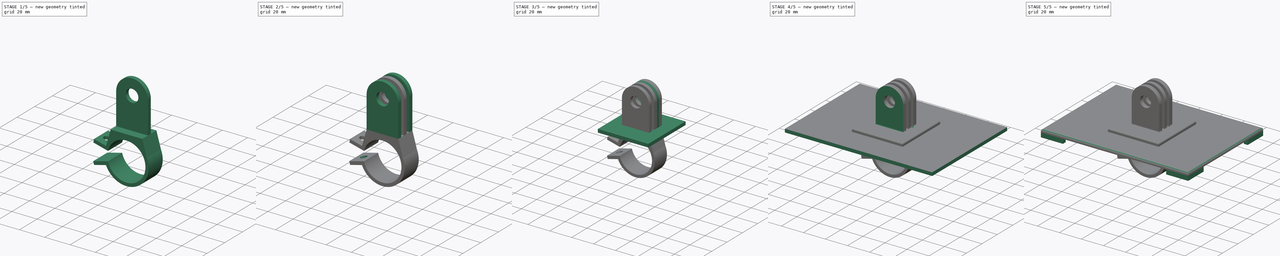
[diagram: build sequence overview — one tinted view per stage of 5, left to right]
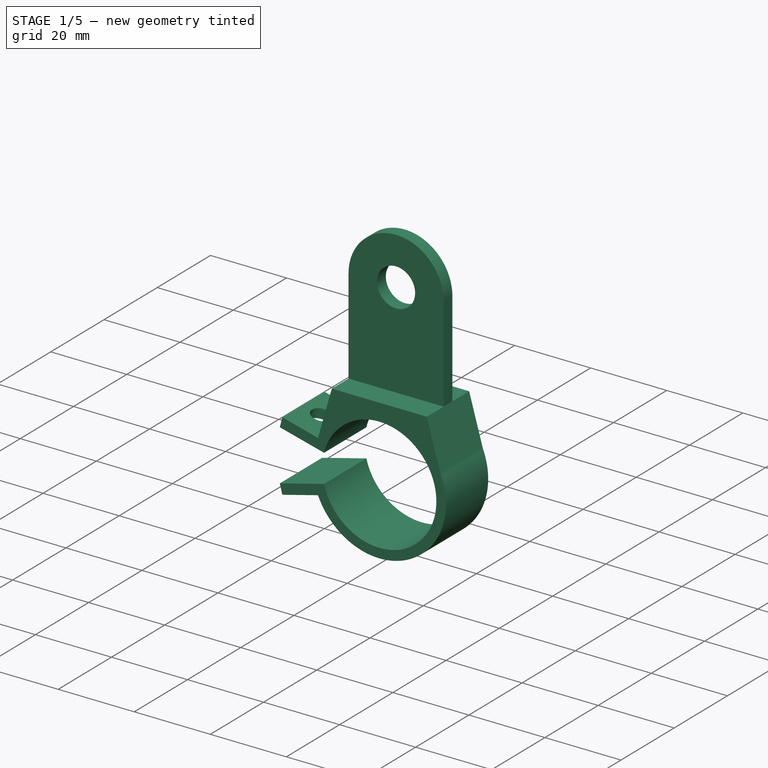
[diagram: stage 1 of 5 — iso view after this stage's code; geometry added in this stage tinted green]
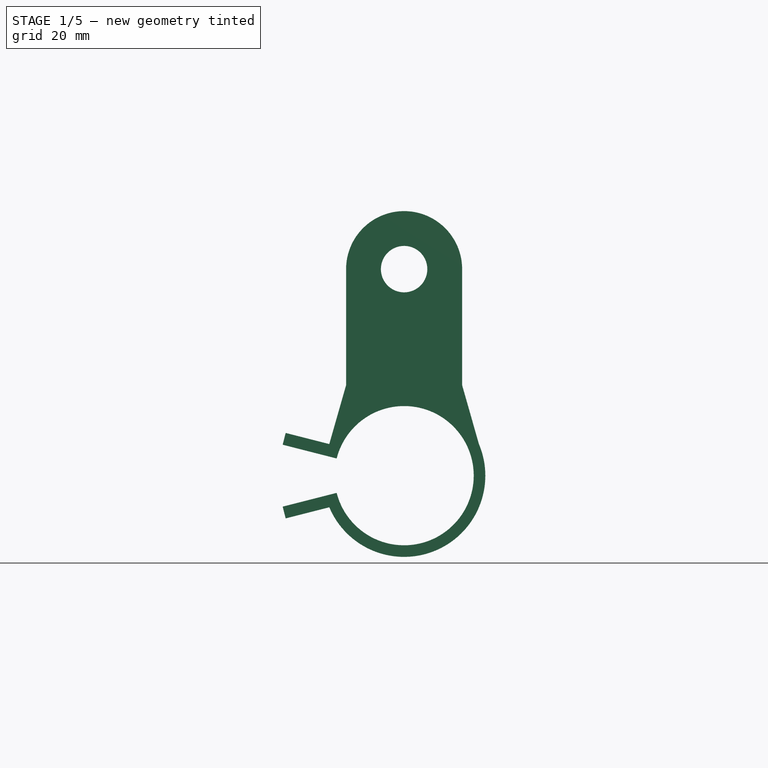
[diagram: stage 1 of 5 — front view after this stage's code; geometry added in this stage tinted green]
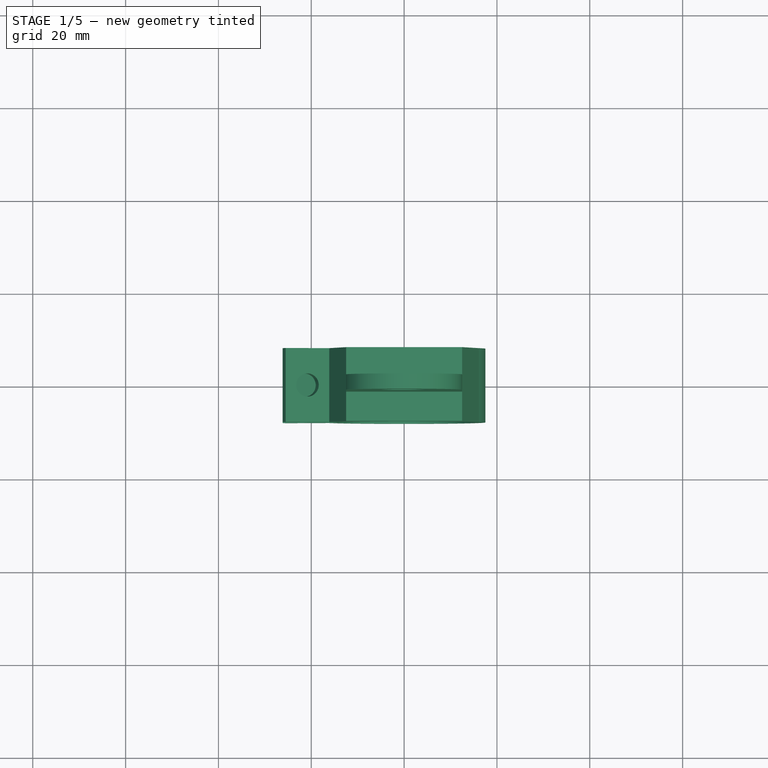
[diagram: stage 1 of 5 — top view after this stage's code; geometry added in this stage tinted green]
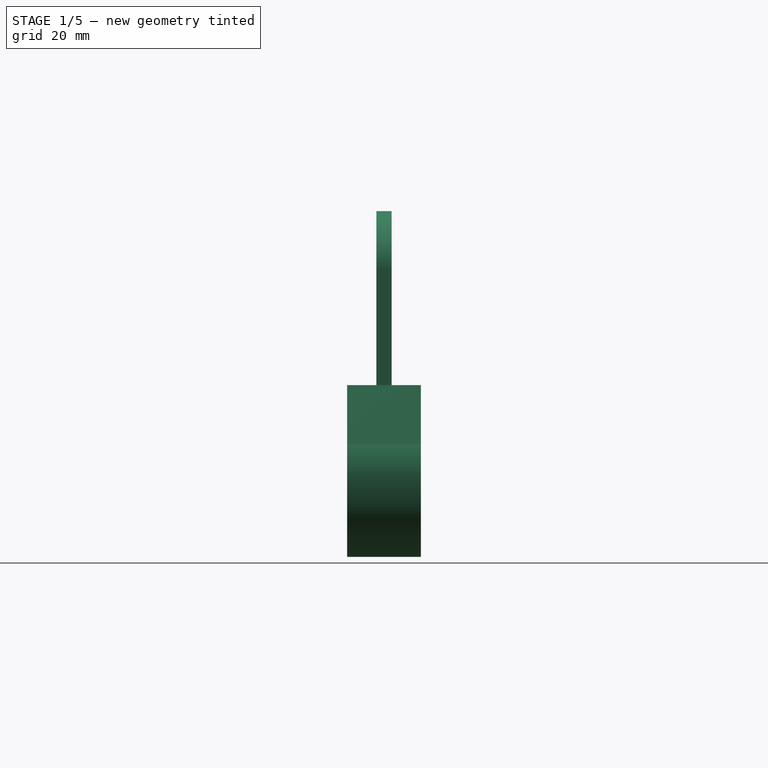
[diagram: stage 1 of 5 — right view after this stage's code; geometry added in this stage tinted green]
FCSTD DOCUMENT  (FreeCAD 0.20R25352 (Git))
Label: gopro mount and misc
License: All rights reserved
LicenseURL: http://en.wikipedia.org/wiki/All_rights_reserved
objects: Sketcher::SketchObject×9, PartDesign::Pad×6, PartDesign::LinearPattern×4, PartDesign::Body×3, PartDesign::Fillet×2, PartDesign::Pocket×2, PartDesign::Mirrored×1, PartDesign::PolarPattern×1, PartDesign::MultiTransform×1
note: 39 computed .brp shape members not serialized (recipe doc carries the construction recipe); baked Part::Feature solids carry a one-line shape summary decoded from their .brp

FEATURE [PartDesign::Body] Body  label="gopro 3"
  Group = -> [Sketch,Sketch001,Pad,Sketch002,Pad001,LinearPattern,LinearPattern001,Fillet]
  Origin = -> Origin
  Tip = -> Fillet
FEATURE [Sketcher::SketchObject] Sketch005
  FullyConstrained = false
  MapMode = 5
  Placement = pos=(0,0,-1.1e-15) rot=(1,0,0;1.5708rad)
  sketch-geometry (5):
    g0: LineSegment StartX=-12.5 StartY=24.7172 StartZ=0 EndX=-12.5 EndY=-0.282837 EndZ=0
    g1: LineSegment StartX=-12.5 StartY=-0.282837 StartZ=0 EndX=12.5 EndY=-0.282837 EndZ=0
    g2: LineSegment StartX=12.5 StartY=-0.282837 StartZ=0 EndX=12.5 EndY=24.7172 EndZ=0
    g3: ArcOfCircle CenterX=0 CenterY=24.7172 CenterZ=0 NormalX=0 NormalY=0 NormalZ=1 AngleXU=0 Radius=12.5 StartAngle=0 EndAngle=3.14159
    g4: Circle CenterX=0 CenterY=24.7172 CenterZ=0 NormalX=0 NormalY=0 NormalZ=1 AngleXU=0 Radius=5
  constraints (14):
    c: Vertical(g0)
    c: Coincident(g0,g1)
    c: Horizontal(g1)
    c: Coincident(g1,g2)
    c: Vertical(g2)
    c: PointOnObject(g3,g-2)
    c: Coincident(g3,g0)
    c: Coincident(g3,g2)
    c: Coincident(g4,g3)
    c: Diameter(g4) = 10
    c: Horizontal(g0,g3)
    c: Horizontal(g2,g3)
    c: DistanceX(g0,g1) = 25
    c: DistanceY(g0,g0) = 25
FEATURE [Sketcher::SketchObject] Sketch007
  ExternalGeometry = -> [Sketch005]
  FullyConstrained = false
  MapMode = 5
  Placement = pos=(0,0,0) rot=(1,0,0;1.5708rad)
  Support = -> [XZ_Plane002]
  sketch-geometry (12):
    g0: ArcOfCircle CenterX=0 CenterY=-19.7824 CenterZ=0 NormalX=0 NormalY=0 NormalZ=1 AngleXU=0 Radius=15 StartAngle=3.39122 EndAngle=9.17515
    g1: LineSegment StartX=-26.1635 StartY=-13.1122 StartZ=0 EndX=-25.5171 EndY=-10.577 EndZ=0
    g2: LineSegment StartX=-25.5171 StartY=-10.577 StartZ=0 EndX=-16.1207 EndY=-12.9726 EndZ=0
    g3: LineSegment StartX=-26.1635 StartY=-26.4526 StartZ=0 EndX=-25.5171 EndY=-28.9878 EndZ=0
    g4: LineSegment StartX=-25.5171 StartY=-28.9878 StartZ=0 EndX=-16.1207 EndY=-26.5923 EndZ=0
    g5: LineSegment StartX=0 StartY=-19.7824 StartZ=0 EndX=-96.3613 EndY=-19.7824 EndZ=0
    g6: LineSegment StartX=-14.5351 StartY=-16.0768 StartZ=0 EndX=-26.1635 EndY=-13.1122 EndZ=0
    g7: LineSegment StartX=-14.5351 StartY=-23.488 StartZ=0 EndX=-26.1635 EndY=-26.4526 EndZ=0
    g8: LineSegment StartX=-16.1207 StartY=-12.9726 StartZ=0 EndX=-12.5 EndY=-0.282837 EndZ=0
    g9: LineSegment StartX=-12.5 StartY=-0.282837 StartZ=0 EndX=12.5 EndY=-0.282837 EndZ=0
    g10: LineSegment StartX=12.5 StartY=-0.282837 StartZ=0 EndX=16.1207 EndY=-12.9726 EndZ=0
    g11: ArcOfCircle CenterX=0 CenterY=-19.7824 CenterZ=0 NormalX=0 NormalY=0 NormalZ=1 AngleXU=0 Radius=17.5 StartAngle=3.54128 EndAngle=6.68288
  constraints (28):
    c: Coincident(g1,g2)
    c: Coincident(g3,g4)
    c: Coincident(g5,g0)
    c: Horizontal(g5)
    c: Coincident(g6,g0)
    c: Coincident(g6,g1)
    c: Coincident(g7,g0)
    c: Coincident(g7,g3)
    c: Diameter(g0) = 30
    c: Perpendicular(g0,g6)
    c: Perpendicular(g1,g6)
    c: Perpendicular(g2,g1)
    c: Perpendicular(g3,g7)
    c: Perpendicular(g4,g3)
    c: PointOnObject(g0,g-2)
    c: Symmetric(g0,g0,g5)
    c: Equal(g3,g1)
    c: Symmetric(g1,g3,g5)
    c: Coincident(g8,g2)
    c: Coincident(g10,g9)
    c: Symmetric(g2,g10,g-2)
    c: Coincident(g11,g0)
    c: Coincident(g11,g4)
    c: Coincident(g11,g10)
    c: Diameter(g11) = 35
    c: Coincident(g8,g9)
    c: Coincident(g8,g-3)
    c: Coincident(g9,g-3)
FEATURE [PartDesign::Pad] Pad006  label="ring"
  Direction = (0,-1,-2e-16)
  Length = 15.9
  Length2 = 1
  Midplane = true
  Placement = pos=(0,0,0) rot=(1,0,0;1.5708rad)
  Profile = -> Sketch007
  Type = 0
FEATURE [PartDesign::Pad] Pad007  label="finger"
  BaseFeature = -> Pad006
  Direction = (0,-1,2e-16)
  Length = 3.3
  Length2 = 100
  Midplane = true
  Placement = pos=(0,0,0) rot=(1,0,0;1.5708rad)
  Profile = -> Sketch005
  Type = 0
FEATURE [Sketcher::SketchObject] Sketch008
  ExternalGeometry = -> [Pad007]
  FullyConstrained = true
  MapMode = 5
  Placement = pos=(-4.08926,3.6e-15,-16.0399) rot=(0.124489,0,0.992221;3.14159rad)
  Support = -> [Pad007]
  sketch-geometry (1):
    g0: Circle CenterX=17.2648 CenterY=7e-16 CenterZ=0 NormalX=0 NormalY=0 NormalZ=1 AngleXU=0 Radius=2.5
  constraints (2):
    c: Symmetric(g-3,g-4,g0)
    c: Diameter(g0) = 5
FEATURE [PartDesign::Pocket] Pocket
  BaseFeature = -> Pad007
  Length = 5
  Length2 = 100
  Placement = pos=(0,0,0) rot=(1,0,0;1.5708rad)
  Profile = -> Sketch008
  Type = 2
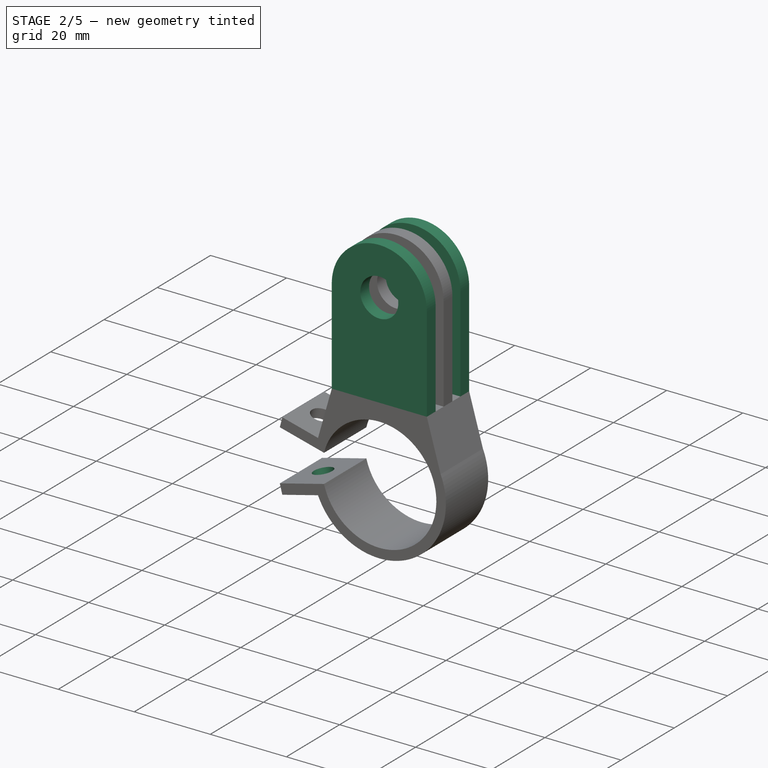
[diagram: stage 2 of 5 — iso view after this stage's code; geometry added in this stage tinted green]
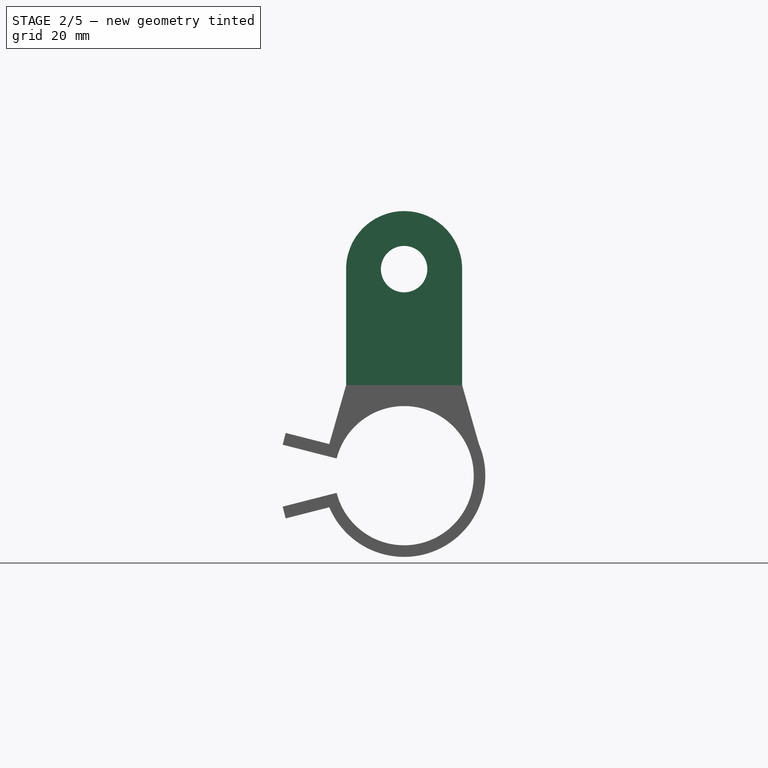
[diagram: stage 2 of 5 — front view after this stage's code; geometry added in this stage tinted green]
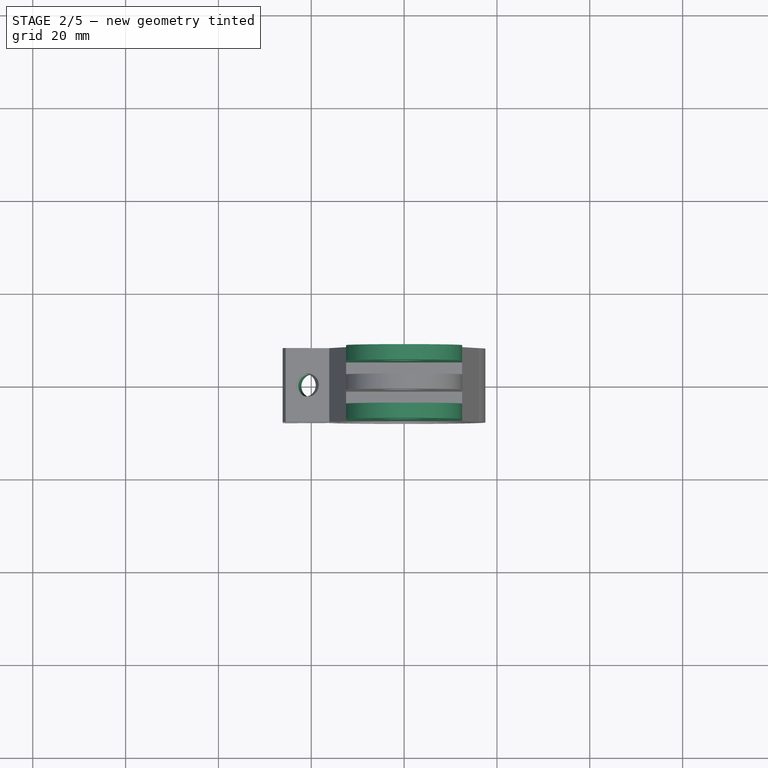
[diagram: stage 2 of 5 — top view after this stage's code; geometry added in this stage tinted green]
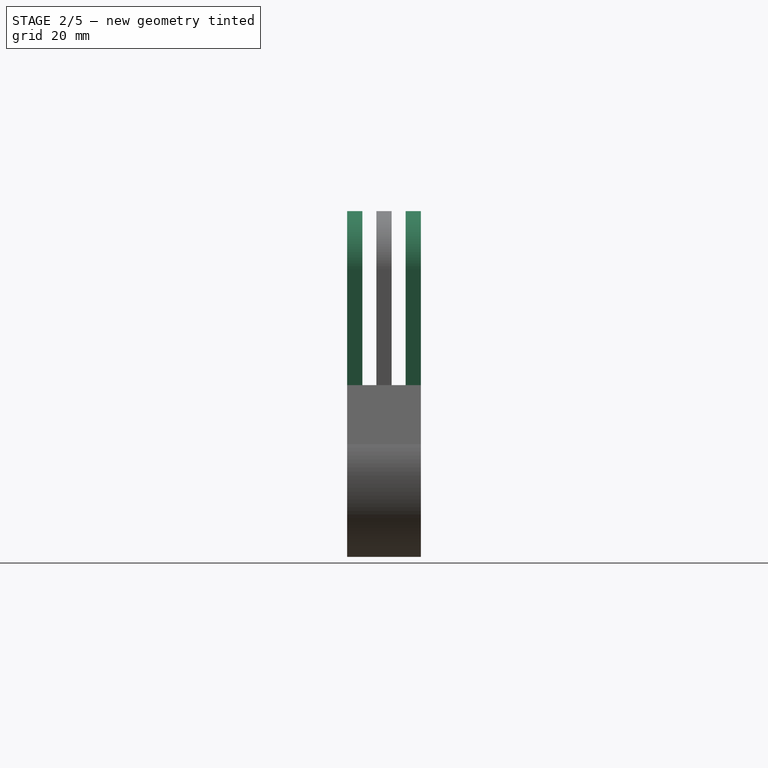
[diagram: stage 2 of 5 — right view after this stage's code; geometry added in this stage tinted green]
FEATURE [Sketcher::SketchObject] Sketch009
  ExternalGeometry = -> [Pocket]
  FullyConstrained = true
  MapMode = 5
  Placement = pos=(4.7356,4.1e-15,-18.5751) rot=(-0.124489,0,0.992221;3.14159rad)
  Support = -> [Pocket]
  sketch-geometry (1):
    g0: Circle CenterX=25.8873 CenterY=-8e-16 CenterZ=0 NormalX=0 NormalY=0 NormalZ=1 AngleXU=0 Radius=2.5
  constraints (2):
    c: Symmetric(g-3,g-4,g0)
    c: Diameter(g0) = 5
FEATURE [PartDesign::Pocket] Pocket001
  BaseFeature = -> Pocket
  Length = 5
  Length2 = 100
  Placement = pos=(0,0,0) rot=(1,0,0;1.5708rad)
  Profile = -> Sketch009
  Type = 2
FEATURE [PartDesign::LinearPattern] LinearPattern002
  BaseFeature = -> Pocket001
  Direction = -> Y_Axis002
  Length = 6.3
  Occurrences = 2
  Originals = -> [Pad007]
  Overlap = 0
  Placement = pos=(0,0,0) rot=(1,0,0;1.5708rad)
FEATURE [PartDesign::LinearPattern] LinearPattern003
  BaseFeature = -> LinearPattern002
  Direction = -> Y_Axis002
  Length = 6.3
  Occurrences = 2
  Originals = -> [Pad007]
  Overlap = 0
  Placement = pos=(0,0,0) rot=(1,0,0;1.5708rad)
  Reversed = true
FEATURE [PartDesign::Body] Body002  label="gopro 2"
  Group = -> [Sketch005,Sketch007,Pad006,Pad007,Sketch008,Pocket,Sketch009,Pocket001,LinearPattern002,LinearPattern003]
  Origin = -> Origin002
  Tip = -> LinearPattern003
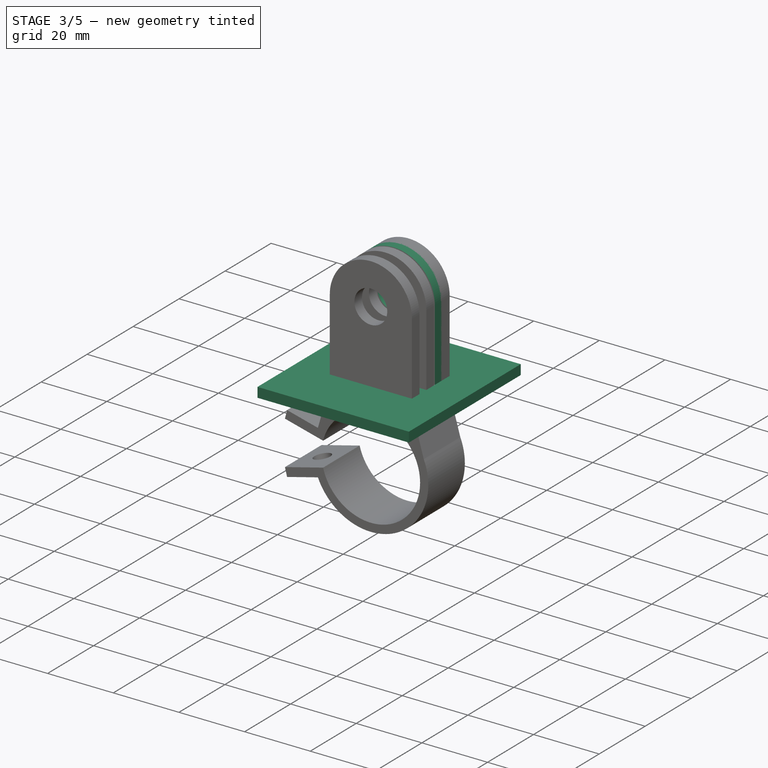
[diagram: stage 3 of 5 — iso view after this stage's code; geometry added in this stage tinted green]
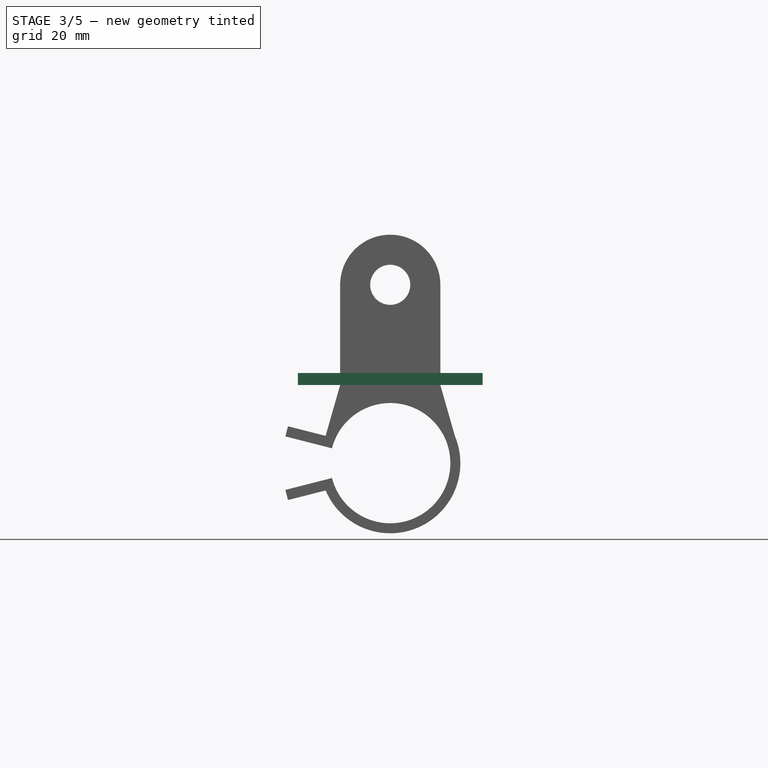
[diagram: stage 3 of 5 — front view after this stage's code; geometry added in this stage tinted green]
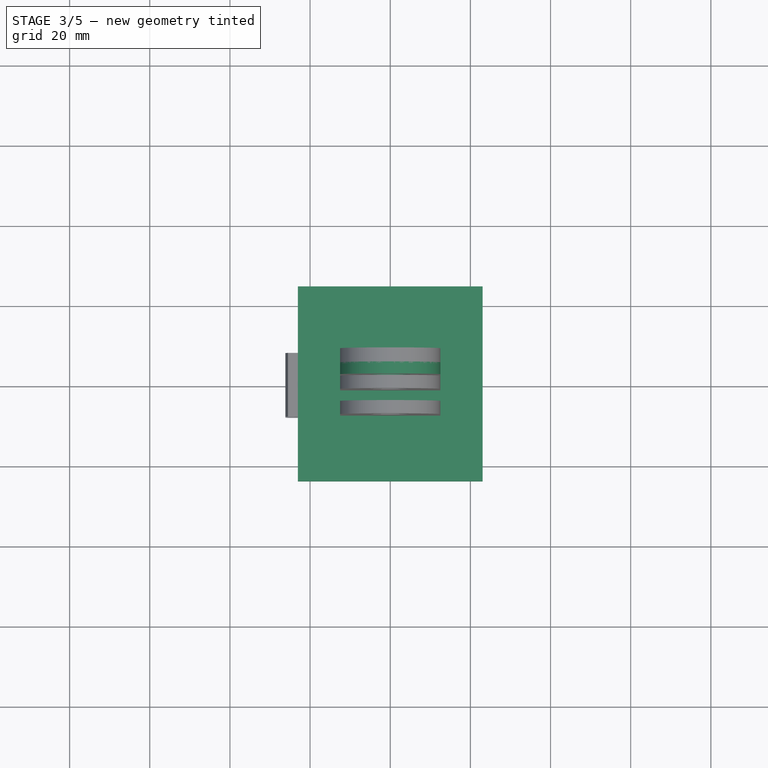
[diagram: stage 3 of 5 — top view after this stage's code; geometry added in this stage tinted green]
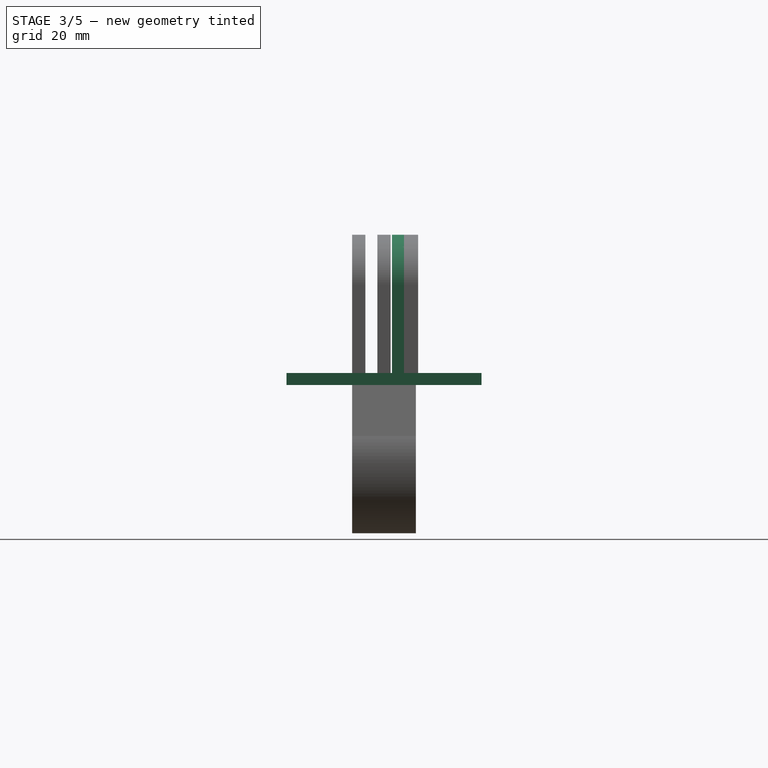
[diagram: stage 3 of 5 — right view after this stage's code; geometry added in this stage tinted green]
FEATURE [Sketcher::SketchObject] Sketch
  FullyConstrained = true
  MapMode = 5
  Support = -> [XY_Plane]
FEATURE [Sketcher::SketchObject] Sketch001
  FullyConstrained = false
  MapMode = 5
  Placement = pos=(0,0,0) rot=(1,0,0;1.5708rad)
  Support = -> [XZ_Plane]
  sketch-geometry (5):
    g0: LineSegment StartX=-12.5 StartY=24.7172 StartZ=0 EndX=-12.5 EndY=-0.282837 EndZ=0
    g1: LineSegment StartX=-12.5 StartY=-0.282837 StartZ=0 EndX=12.5 EndY=-0.282837 EndZ=0
    g2: LineSegment StartX=12.5 StartY=-0.282837 StartZ=0 EndX=12.5 EndY=24.7172 EndZ=0
    g3: ArcOfCircle CenterX=0 CenterY=24.7172 CenterZ=0 NormalX=0 NormalY=0 NormalZ=1 AngleXU=0 Radius=12.5 StartAngle=0 EndAngle=3.14159
    g4: Circle CenterX=0 CenterY=24.7172 CenterZ=0 NormalX=0 NormalY=0 NormalZ=1 AngleXU=0 Radius=5
  constraints (14):
    c: Vertical(g0)
    c: Coincident(g0,g1)
    c: Horizontal(g1)
    c: Coincident(g1,g2)
    c: Vertical(g2)
    c: PointOnObject(g3,g-2)
    c: Coincident(g3,g0)
    c: Coincident(g3,g2)
    c: Coincident(g4,g3)
    c: Diameter(g4) = 10
    c: Horizontal(g0,g3)
    c: Horizontal(g2,g3)
    c: DistanceX(g0,g1) = 25
    c: DistanceY(g0,g0) = 25
FEATURE [PartDesign::Pad] Pad  label="fingers"
  Direction = (0,-1,-2e-16)
  Length = 3
  Length2 = 100
  Midplane = true
  Placement = pos=(0,0,0) rot=(1,0,0;1.5708rad)
  Profile = -> Sketch001
  Type = 0
FEATURE [Sketcher::SketchObject] Sketch002
  FullyConstrained = false
  MapMode = 5
  Placement = pos=(0,-1e-16,-0.282837) rot=(1,0,0;3.14159rad)
  Support = -> [Pad]
  sketch-geometry (4):
    g0: LineSegment StartX=-23.0517 StartY=24.328 StartZ=0 EndX=23.0517 EndY=24.328 EndZ=0
    g1: LineSegment StartX=23.0517 StartY=24.328 StartZ=0 EndX=23.0517 EndY=-24.328 EndZ=0
    g2: LineSegment StartX=23.0517 StartY=-24.328 StartZ=0 EndX=-23.0517 EndY=-24.328 EndZ=0
    g3: LineSegment StartX=-23.0517 StartY=-24.328 StartZ=0 EndX=-23.0517 EndY=24.328 EndZ=0
  constraints (9):
    c: Coincident(g0,g1)
    c: Coincident(g1,g2)
    c: Coincident(g2,g3)
    c: Coincident(g3,g0)
    c: Horizontal(g0)
    c: Horizontal(g2)
    c: Vertical(g1)
    c: Vertical(g3)
    c: Symmetric(g0,g1,g-1)
FEATURE [PartDesign::Pad] Pad001  label="support"
  BaseFeature = -> Pad
  Direction = (0,2e-16,-1)
  Length = 3
  Length2 = 100
  Placement = pos=(0,0,0) rot=(1,0,0;1.5708rad)
  Profile = -> Sketch002
  Reversed = true
  Type = 0
FEATURE [PartDesign::LinearPattern] LinearPattern
  BaseFeature = -> Pad001
  Direction = -> Y_Axis
  Length = 7
  Occurrences = 3
  Originals = -> [Pad]
  Overlap = 0
  Placement = pos=(0,0,0) rot=(1,0,0;1.5708rad)
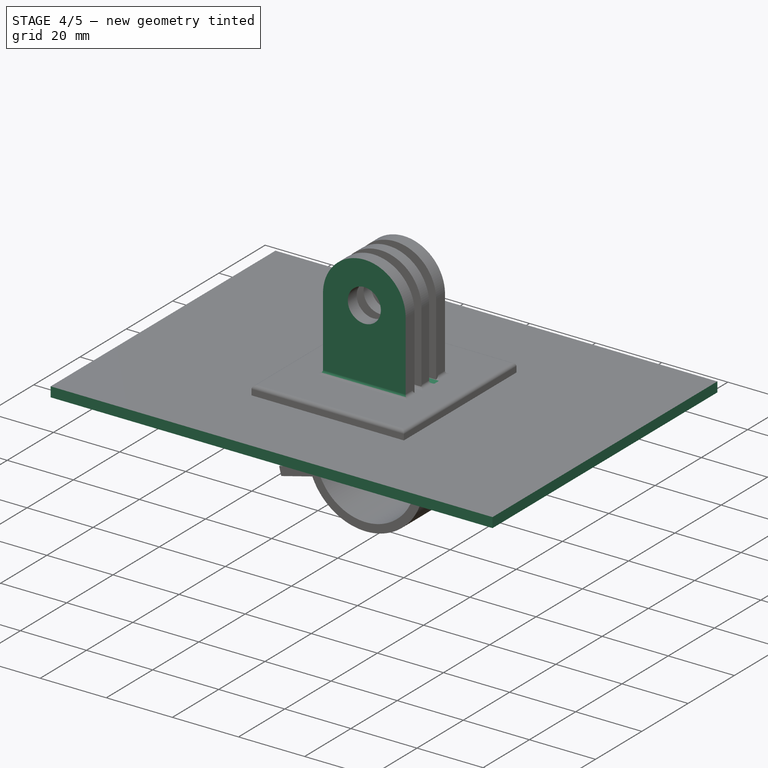
[diagram: stage 4 of 5 — iso view after this stage's code; geometry added in this stage tinted green]
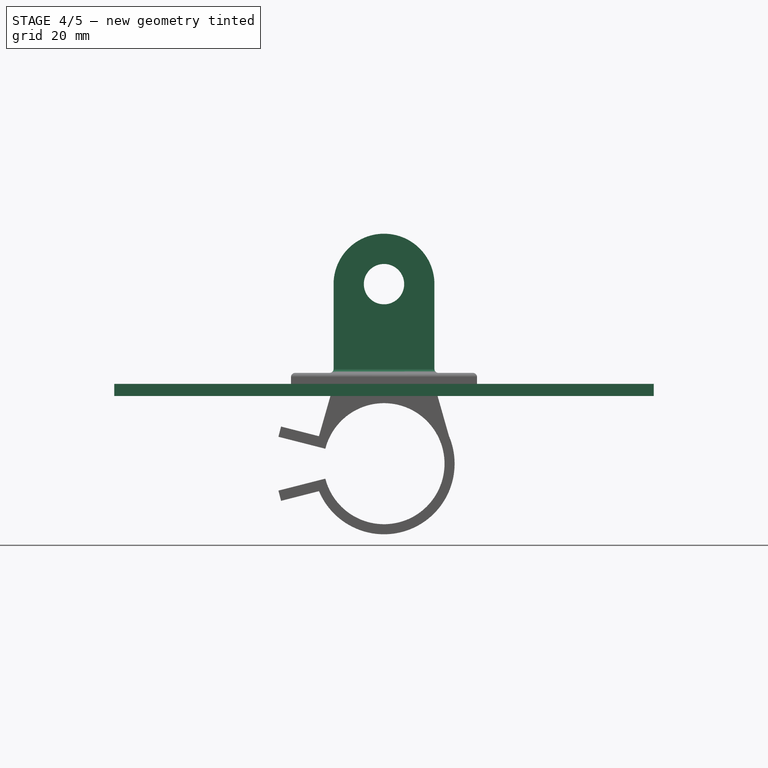
[diagram: stage 4 of 5 — front view after this stage's code; geometry added in this stage tinted green]
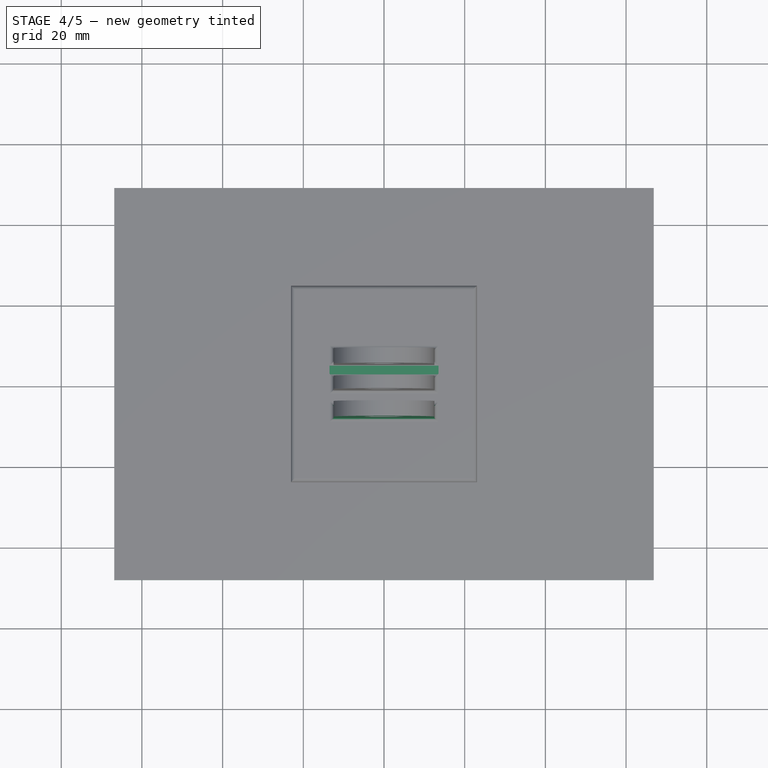
[diagram: stage 4 of 5 — top view after this stage's code; geometry added in this stage tinted green]
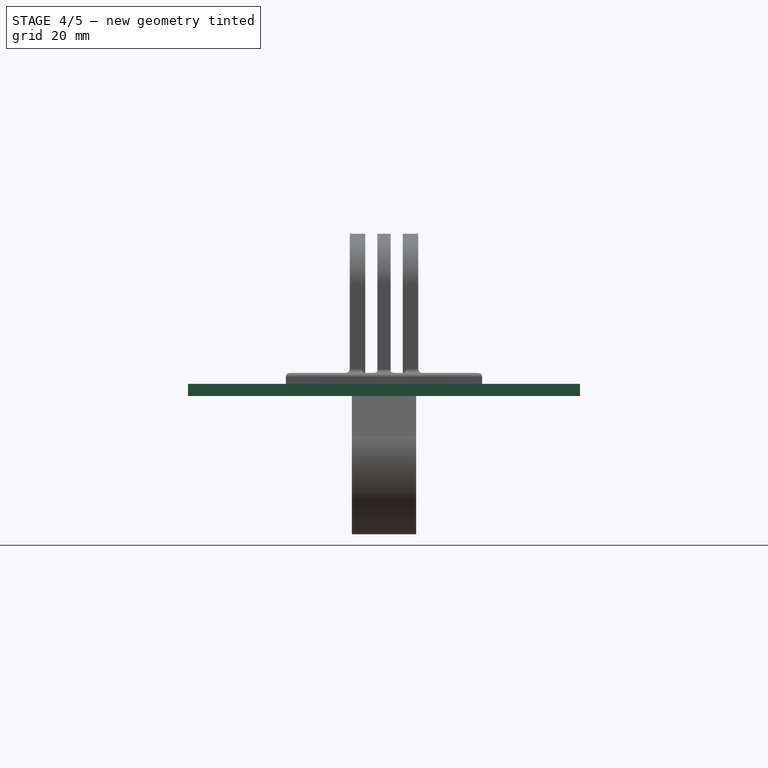
[diagram: stage 4 of 5 — right view after this stage's code; geometry added in this stage tinted green]
FEATURE [PartDesign::LinearPattern] LinearPattern001
  BaseFeature = -> LinearPattern
  Direction = -> Y_Axis
  Length = 7
  Occurrences = 3
  Originals = -> [Pad]
  Overlap = 0
  Placement = pos=(0,0,0) rot=(1,0,0;1.5708rad)
  Reversed = true
FEATURE [Sketcher::SketchObject] Sketch003
  FullyConstrained = false
  MapMode = 5
  Support = -> [XY_Plane001]
  sketch-geometry (4):
    g0: LineSegment StartX=-66.8509 StartY=-48.5736 StartZ=0 EndX=66.8509 EndY=-48.5736 EndZ=0
    g1: LineSegment StartX=66.8509 StartY=-48.5736 StartZ=0 EndX=66.8509 EndY=48.5736 EndZ=0
    g2: LineSegment StartX=66.8509 StartY=48.5736 StartZ=0 EndX=-66.8509 EndY=48.5736 EndZ=0
    g3: LineSegment StartX=-66.8509 StartY=48.5736 StartZ=0 EndX=-66.8509 EndY=-48.5736 EndZ=0
  constraints (9):
    c: Coincident(g0,g1)
    c: Coincident(g1,g2)
    c: Coincident(g2,g3)
    c: Coincident(g3,g0)
    c: Horizontal(g0)
    c: Horizontal(g2)
    c: Vertical(g1)
    c: Vertical(g3)
    c: Symmetric(g2,g0,g-1)
FEATURE [PartDesign::Pad] Pad002  label="backing"
  Direction = (1,1,1)
  Length = 3
  Length2 = 100
  Profile = -> Sketch003
  Reversed = true
  Type = 0
FEATURE [PartDesign::Body] Body001  label="mp3 mount"
  Group = -> [Sketch003,Pad002,Sketch004,Pad003,MultiTransform,Mirrored,PolarPattern,Fillet001]
  Origin = -> Origin001
  Tip = -> Fillet001
FEATURE [PartDesign::Fillet] Fillet
  Base = -> LinearPattern001 [Face3]
  BaseFeature = -> LinearPattern001
  Placement = pos=(0,0,0) rot=(1,0,0;1.5708rad)
  Radius = 1
  SupportTransform = false
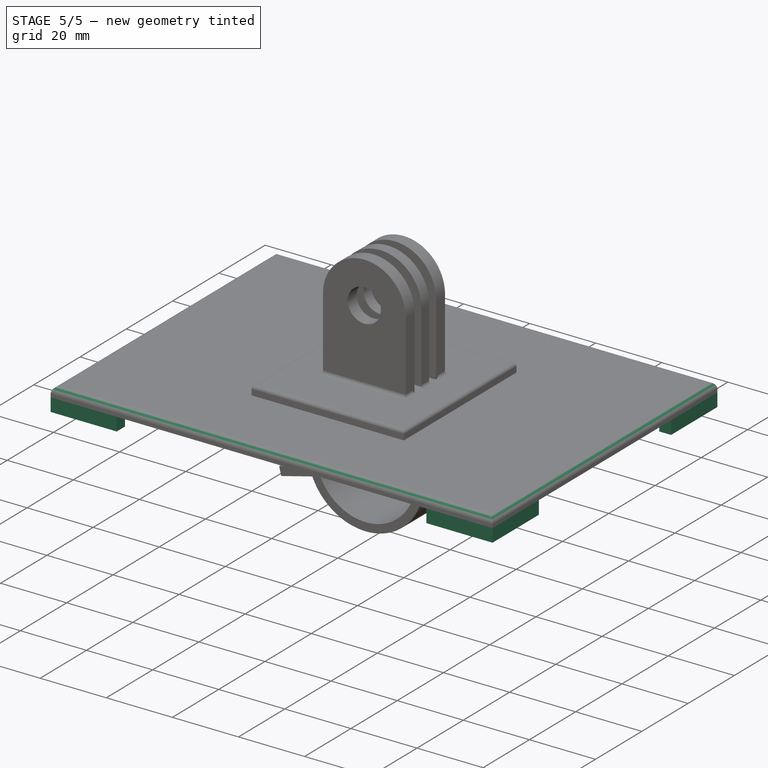
[diagram: stage 5 of 5 — iso view after this stage's code; geometry added in this stage tinted green]
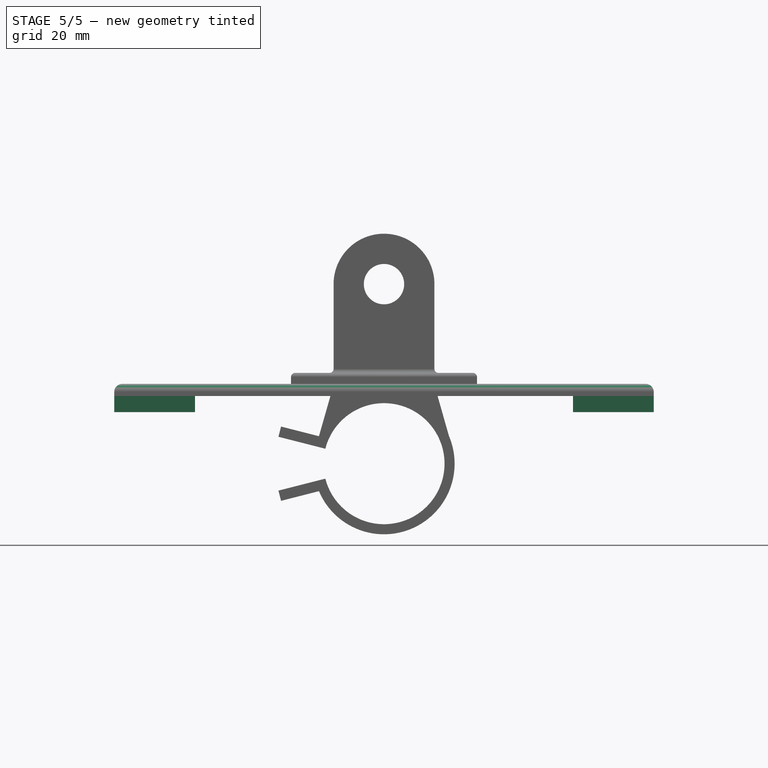
[diagram: stage 5 of 5 — front view after this stage's code; geometry added in this stage tinted green]
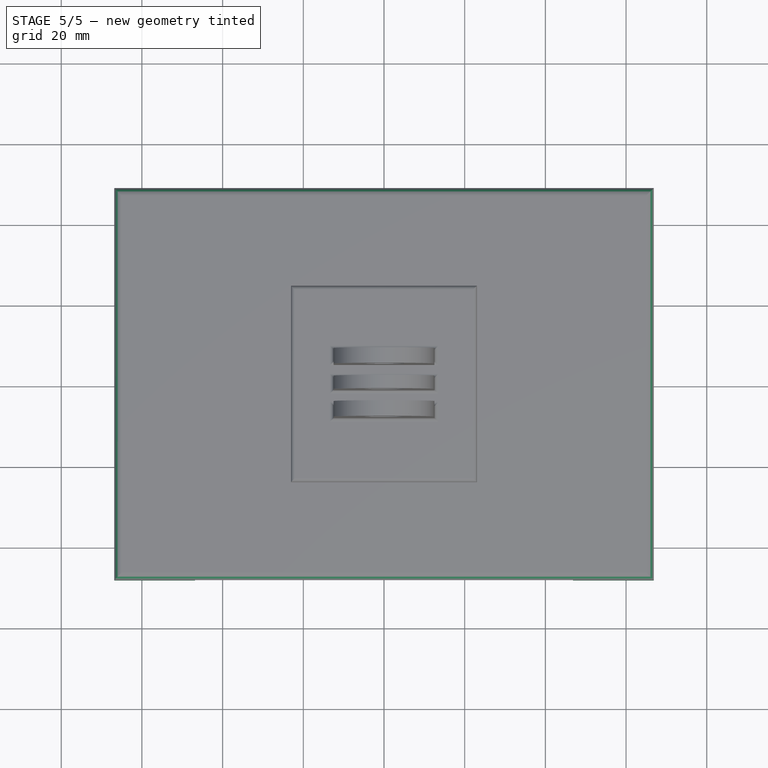
[diagram: stage 5 of 5 — top view after this stage's code; geometry added in this stage tinted green]
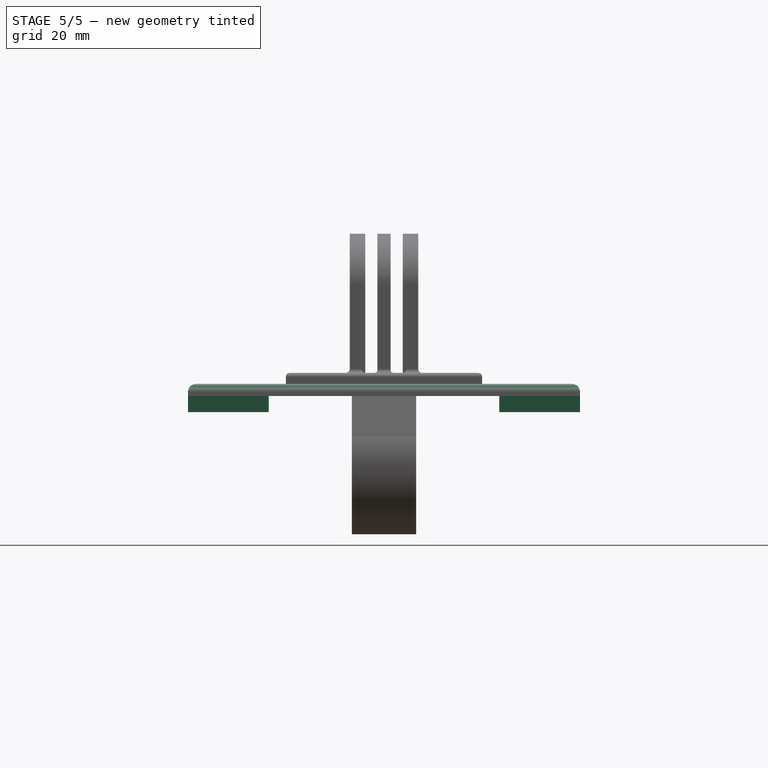
[diagram: stage 5 of 5 — right view after this stage's code; geometry added in this stage tinted green]
FEATURE [Sketcher::SketchObject] Sketch004
  ExternalGeometry = -> [Pad002]
  FullyConstrained = true
  MapMode = 5
  Placement = pos=(0,0,-3) rot=(1,0,0;3.14159rad)
  Support = -> [Pad002]
  sketch-geometry (6):
    g0: LineSegment StartX=-66.8509 StartY=48.5736 StartZ=0 EndX=-46.8509 EndY=48.5736 EndZ=0
    g1: LineSegment StartX=-46.8509 StartY=48.5736 StartZ=0 EndX=-46.8509 EndY=45 EndZ=0
    g2: LineSegment StartX=-66.8509 StartY=28.5736 StartZ=0 EndX=-66.8509 EndY=48.5736 EndZ=0
    g3: LineSegment StartX=-66.8509 StartY=28.5736 StartZ=0 EndX=-63.2772 EndY=28.5736 EndZ=0
    g4: LineSegment StartX=-63.2772 StartY=28.5736 StartZ=0 EndX=-63.2772 EndY=45 EndZ=0
    g5: LineSegment StartX=-63.2772 StartY=45 StartZ=0 EndX=-46.8509 EndY=45 EndZ=0
  constraints (17):
    c: Coincident(g0,g1)
    c: Coincident(g2,g0)
    c: Horizontal(g0)
    c: Vertical(g1)
    c: Vertical(g2)
    c: Coincident(g0,g-3)
    c: Coincident(g3,g2)
    c: Coincident(g4,g3)
    c: Vertical(g4)
    c: Coincident(g5,g4)
    c: Coincident(g5,g1)
    c: Horizontal(g5)
    c: Equal(g2,g0)
    c: Horizontal(g3)
    c: Equal(g4,g5)
    c: DistanceY(g-1,g1) = 45
    c: DistanceY(g2,g2) = 20
FEATURE [PartDesign::Pad] Pad003  label="grabbers"
  BaseFeature = -> Pad002
  Direction = (1,1,1)
  Length = 4
  Length2 = 100
  Profile = -> Sketch004
  Type = 0
FEATURE [PartDesign::Mirrored] Mirrored
  MirrorPlane = -> Sketch004 [V_Axis]
  Overlap = 0
FEATURE [PartDesign::PolarPattern] PolarPattern
  Angle = 360
  Axis = -> Sketch004 [N_Axis]
  Occurrences = 3
  Overlap = 0
FEATURE [PartDesign::MultiTransform] MultiTransform
  BaseFeature = -> Pad003
  Originals = -> [Pad003]
  Overlap = 0
  Transformations = -> [Mirrored,PolarPattern]
FEATURE [PartDesign::Fillet] Fillet001
  Base = -> MultiTransform [Face4]
  BaseFeature = -> MultiTransform
  Radius = 2
  SupportTransform = false
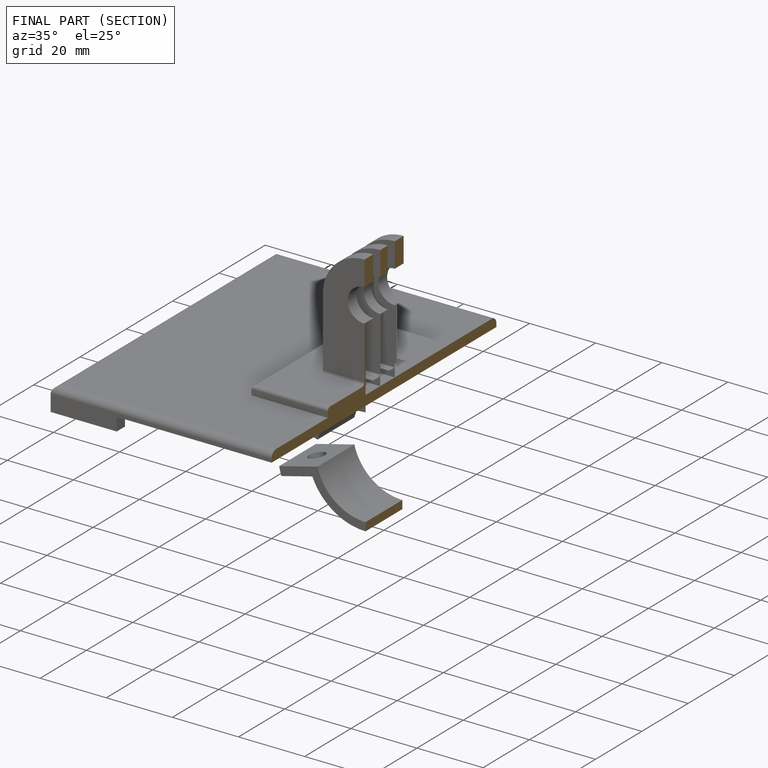
[diagram: finished part — half-section view (interior)]
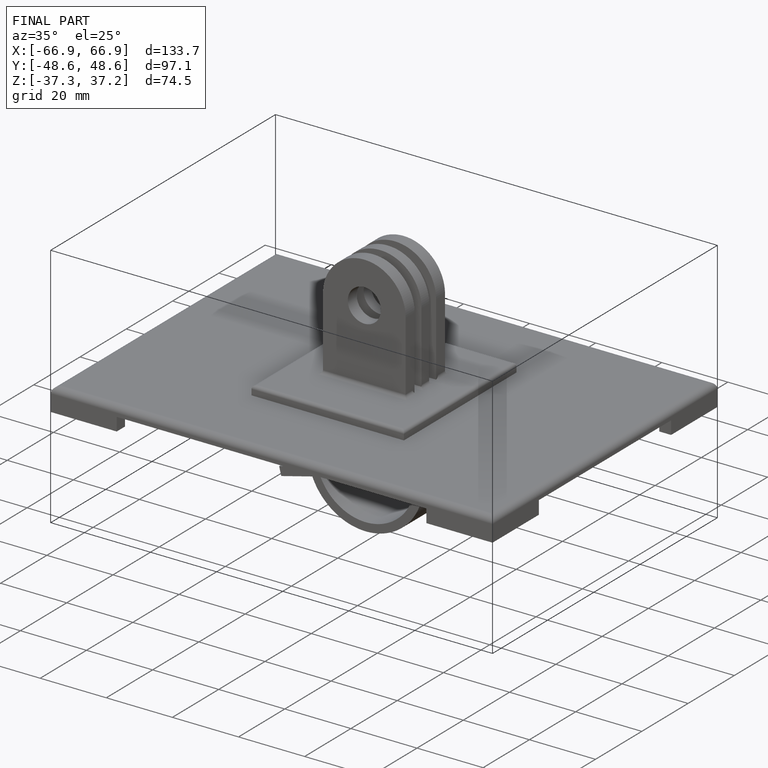
[diagram: finished part — iso view with bounding-box wireframe]
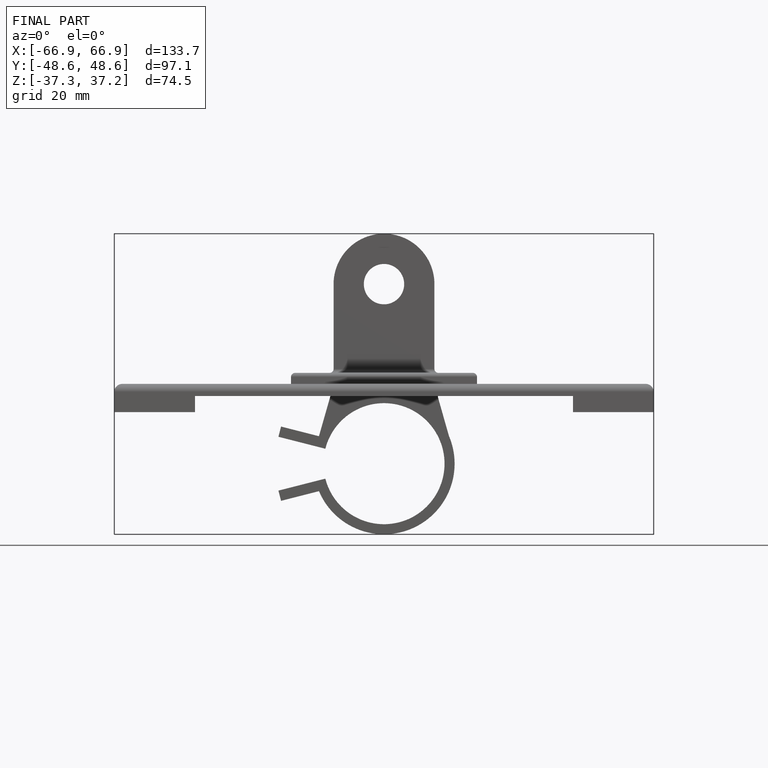
[diagram: finished part — front view with bounding-box wireframe]
